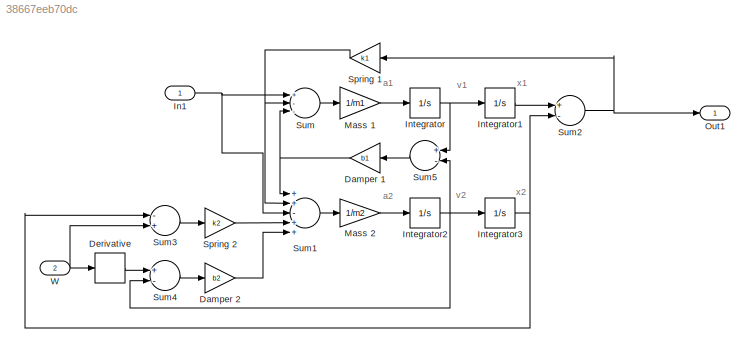
MODEL slx_38667eeb70dc
KIND model
CONFIG AbsTol = 1e-6
CONFIG EnableMultiTasking = off
CONFIG FixedStep = auto
CONFIG MaxStep = auto
CONFIG MinStep = auto
CONFIG RelTol = 1e-3
CONFIG SampleTimeConstraint = Unconstrained
CONFIG Solver = ode45
CONFIG SolverName = ode45
CONFIG StartTime = 0.0
CONFIG StopTime = 50
BLOCK [Gain] Damper 1
  Gain = b1
BLOCK [Gain] Damper 2
  Gain = b2
BLOCK [Derivative] Derivative
BLOCK [Inport] In1
  IconDisplay = Port number
BLOCK [Integrator] Integrator
  Ports = [1, 1]
BLOCK [Integrator] Integrator1
  Ports = [1, 1]
BLOCK [Integrator] Integrator2
  Ports = [1, 1]
BLOCK [Integrator] Integrator3
  Ports = [1, 1]
BLOCK [Gain] Mass 1
  Gain = 1/m1
BLOCK [Gain] Mass 2
  Gain = 1/m2
BLOCK [Outport] Out1
  IconDisplay = Port number
BLOCK [Gain] Spring 1
  Gain = k1
BLOCK [Gain] Spring 2
  Gain = k2
BLOCK [Sum] Sum
  Inputs = +--
  Ports = [3, 1]
BLOCK [Sum] Sum1
  Inputs = ++-++
  Ports = [5, 1]
BLOCK [Sum] Sum2
  Inputs = +-
  Ports = [2, 1]
BLOCK [Sum] Sum3
  Inputs = -+
  Ports = [2, 1]
BLOCK [Sum] Sum4
  Inputs = +-
  Ports = [2, 1]
BLOCK [Sum] Sum5
  Inputs = +-
  Ports = [2, 1]
BLOCK [Inport] W
  IconDisplay = Port number
  Port = 2
ANNOTATION (root): a1
ANNOTATION (root): a2
ANNOTATION (root): v1
ANNOTATION (root): v2
ANNOTATION (root): x1
ANNOTATION (root): x2
NET Damper 1:1 -> Sum1:1, Sum:3
LINE Damper 2:1 -> Sum1:5
LINE Derivative:1 -> Sum4:1
NET In1:1 -> Sum1:3, Sum:1
LINE Integrator1:1 -> Sum2:1
NET Integrator2:1 -> Integrator3:1, Sum4:2, Sum5:2
NET Integrator3:1 -> Sum2:2, Sum3:1
NET Integrator:1 -> Integrator1:1, Sum5:1
LINE Mass 1:1 -> Integrator:1
LINE Mass 2:1 -> Integrator2:1
NET Spring 1:1 -> Sum1:2, Sum:2
LINE Spring 2:1 -> Sum1:4
LINE Sum1:1 -> Mass 2:1
NET Sum2:1 -> Out1:1, Spring 1:1
LINE Sum3:1 -> Spring 2:1
LINE Sum4:1 -> Damper 2:1
LINE Sum5:1 -> Damper 1:1
LINE Sum:1 -> Mass 1:1
NET W:1 -> Derivative:1, Sum3:2
note: NET lines group one-source signal fan-out (src -> all destinations, sorted); 1:1 wires keep LINE
